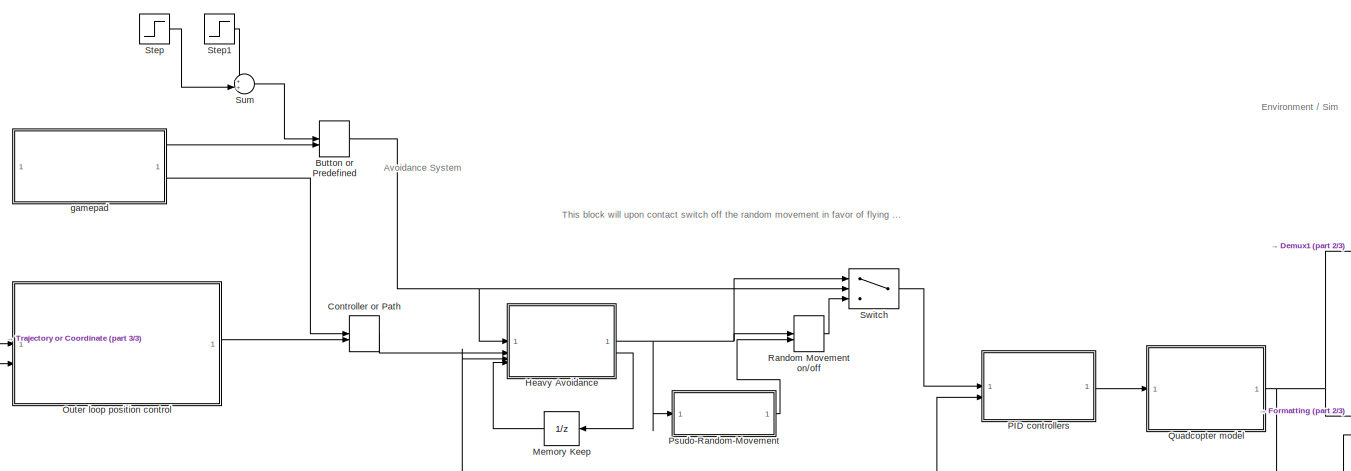
[diagram: root canvas - part 1/3, center side, full height]
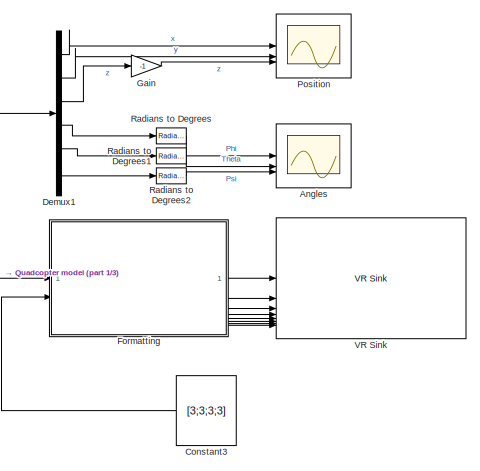
[diagram: root canvas - part 2/3, right side, full height]
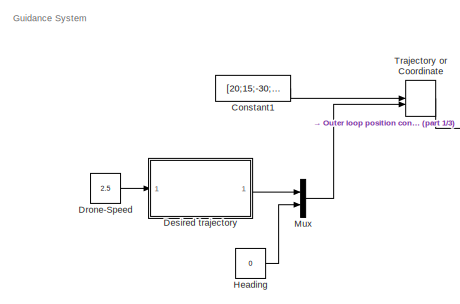
[diagram: root canvas - part 3/3, middle left region]
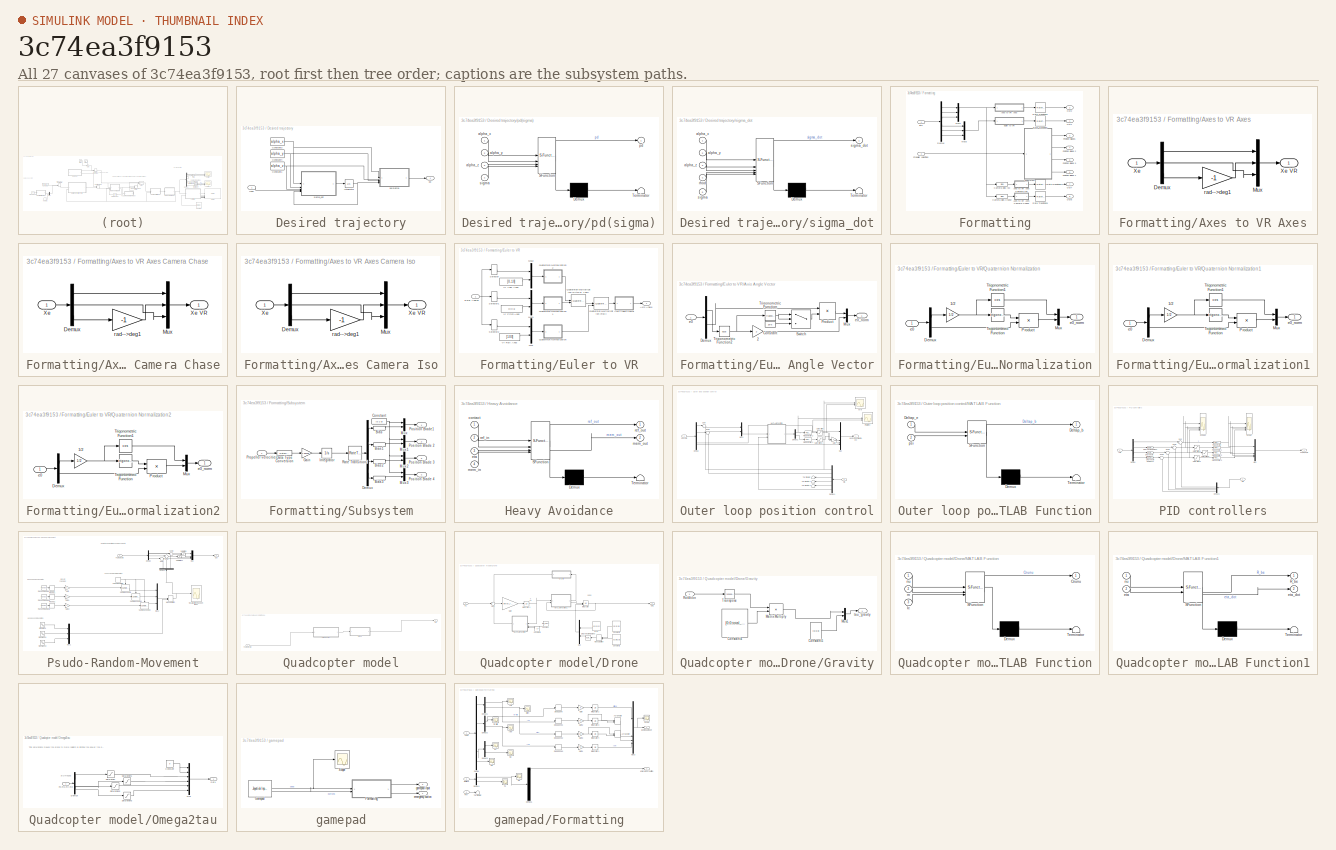
[diagram: thumbnail index - all 27 canvases of the model, root first then tree order]
MODEL slx_3c74ea3f9153
KIND model
CONFIG AbsTol = auto
CONFIG EnableMultiTasking = on
CONFIG FixedStep = 0.005
CONFIG MaxStep = auto
CONFIG MinStep = auto
CONFIG RelTol = 1e-3
CONFIG SampleTimeConstraint = Unconstrained
CONFIG SolverName = ode3
CONFIG StartTime = 0
CONFIG StopTime = inf
BLOCK [Scope] Angles
  Floating = off
  NameLocation = top
  NumInputPorts = 3
  ScopeSpecificationString = Simulink.scopes.TimeScopeBlockCfg('CurrentConfiguration', extmgr.ConfigurationSet(extmgr.Configuration('Core','General UI',true),extmgr.Configuration('Core','Source UI',true),extmgr.Configuration('Sources','WiredSimulink',true,'DataLoggingVariableName','ScopeData1'),extmgr.Configuration('Visuals','Time Domain',true,'SerializedDisplays',{struct('MinYLimReal','-14501649841668824491884544.00000','Max...<+1771ch>
BLOCK [ManualSwitch] Button or Predefined
  CurrentSetting = 0
BLOCK [Constant] Constant1
  Value = [20;15;-30;0]
BLOCK [Constant] Constant3
  Value = [3;3;3;3]
  VectorParams1D = off
BLOCK [ManualSwitch] Controller or Path
BLOCK [Demux] Demux1
  Outputs = 6
BLOCK [SubSystem] Desired trajectory
BLOCK [Constant] Desired trajectory/Constant1
  Value = alpha_z
  VectorParams1D = off
BLOCK [Constant] Desired trajectory/Constant3
  Value = alpha_x
  VectorParams1D = off
BLOCK [Constant] Desired trajectory/Constant4
  Value = alpha_y
  VectorParams1D = off
BLOCK [Integrator] Desired trajectory/Integrator
BLOCK [Outport] Desired trajectory/pd
BLOCK [SubSystem] Desired trajectory/pd(sigma)
  ErrorFcn = Stateflow.Translate.translate
  PermitHierarchicalResolution = ExplicitOnly
  SFBlockType = MATLAB Function
  TreatAsAtomicUnit = on
BLOCK [Demux] Desired trajectory/pd(sigma)/ Demux 
  Outputs = 1
BLOCK [S-Function] Desired trajectory/pd(sigma)/ SFunction 
  EnableBusSupport = on
  FunctionName = sf_sfun
  PortCounts = [4 2]
  SFcnIsStateOwnerBlock = off
  SFunctionDeploymentMode = off
  Tag = Stateflow S-Function 3
BLOCK [Terminator] Desired trajectory/pd(sigma)/ Terminator 
BLOCK [Inport] Desired trajectory/pd(sigma)/alpha_x
BLOCK [Inport] Desired trajectory/pd(sigma)/alpha_y
  Port = 2
BLOCK [Inport] Desired trajectory/pd(sigma)/alpha_z
  Port = 3
BLOCK [Outport] Desired trajectory/pd(sigma)/pd
BLOCK [Inport] Desired trajectory/pd(sigma)/sigma
  Port = 4
BLOCK [Inport] Desired trajectory/rhod
BLOCK [SubSystem] Desired trajectory/sigma_dot
  ErrorFcn = Stateflow.Translate.translate
  PermitHierarchicalResolution = ExplicitOnly
  SFBlockType = MATLAB Function
  TreatAsAtomicUnit = on
BLOCK [Demux] Desired trajectory/sigma_dot/ Demux 
  Outputs = 1
BLOCK [S-Function] Desired trajectory/sigma_dot/ SFunction 
  EnableBusSupport = on
  FunctionName = sf_sfun
  PortCounts = [5 2]
  SFcnIsStateOwnerBlock = off
  SFunctionDeploymentMode = off
  Tag = Stateflow S-Function 5
BLOCK [Terminator] Desired trajectory/sigma_dot/ Terminator 
BLOCK [Inport] Desired trajectory/sigma_dot/alpha_x
BLOCK [Inport] Desired trajectory/sigma_dot/alpha_y
  Port = 2
BLOCK [Inport] Desired trajectory/sigma_dot/alpha_z
  Port = 3
BLOCK [Inport] Desired trajectory/sigma_dot/rhod
  Port = 4
BLOCK [Inport] Desired trajectory/sigma_dot/sigma
  Port = 5
BLOCK [Outport] Desired trajectory/sigma_dot/sigma_dot
BLOCK [Constant] Drone-Speed
  Value = 2.5
BLOCK [SubSystem] Formatting
BLOCK [SubSystem] Formatting/Axes to VR Axes
BLOCK [SubSystem] Formatting/Axes to VR Axes Camera Chase
BLOCK [Demux] Formatting/Axes to VR Axes Camera Chase/Demux
  DisplayOption = none
  Outputs = 3
BLOCK [Mux] Formatting/Axes to VR Axes Camera Chase/Mux
  DisplayOption = bar
  Inputs = 3
BLOCK [Inport] Formatting/Axes to VR Axes Camera Chase/Xe
BLOCK [Outport] Formatting/Axes to VR Axes Camera Chase/Xe VR
  VectorParamsAs1DForOutWhenUnconnected = off
BLOCK [Gain] Formatting/Axes to VR Axes Camera Chase/rad-->deg1
  Gain = -1
  NameLocation = top
  OutDataTypeStr = Inherit: Same as input
  ParamDataTypeStr = Inherit: Same as input
  SaturateOnIntegerOverflow = on
BLOCK [SubSystem] Formatting/Axes to VR Axes Camera Iso
BLOCK [Demux] Formatting/Axes to VR Axes Camera Iso/Demux
  DisplayOption = none
  Outputs = 3
BLOCK [Mux] Formatting/Axes to VR Axes Camera Iso/Mux
  DisplayOption = bar
  Inputs = 3
BLOCK [Inport] Formatting/Axes to VR Axes Camera Iso/Xe
BLOCK [Outport] Formatting/Axes to VR Axes Camera Iso/Xe VR
  VectorParamsAs1DForOutWhenUnconnected = off
BLOCK [Gain] Formatting/Axes to VR Axes Camera Iso/rad-->deg1
  Gain = -1
  NameLocation = top
  OutDataTypeStr = Inherit: Same as input
  ParamDataTypeStr = Inherit: Same as input
  SaturateOnIntegerOverflow = on
BLOCK [Demux] Formatting/Axes to VR Axes/Demux
  DisplayOption = none
  Outputs = 3
BLOCK [Mux] Formatting/Axes to VR Axes/Mux
  DisplayOption = bar
  Inputs = 3
BLOCK [Inport] Formatting/Axes to VR Axes/Xe
BLOCK [Outport] Formatting/Axes to VR Axes/Xe VR
  VectorParamsAs1DForOutWhenUnconnected = off
BLOCK [Gain] Formatting/Axes to VR Axes/rad-->deg1
  Gain = -1
  NameLocation = top
  OutDataTypeStr = Inherit: Same as input
  ParamDataTypeStr = Inherit: Same as input
  SaturateOnIntegerOverflow = on
BLOCK [Bias] Formatting/Camera bias Chase
  Bias = [-4 0 -.9558]'
  SaturateOnIntegerOverflow = off
BLOCK [Bias] Formatting/Camera bias Iso
  Bias = [0.9009 .99 -.6247]'
  SaturateOnIntegerOverflow = off
BLOCK [Demux] Formatting/Demux
  Outputs = 6
BLOCK [Inport] Formatting/Eta
BLOCK [SubSystem] Formatting/Euler to VR
BLOCK [Outport] Formatting/Euler to VR/Axis Angle
  VectorParamsAs1DForOutWhenUnconnected = off
BLOCK [SubSystem] Formatting/Euler to VR/Axis Angle Vector
BLOCK [Gain] Formatting/Euler to VR/Axis Angle Vector/2
  Gain = 2
  OutDataTypeStr = Inherit: Same as input
  ParamDataTypeStr = Inherit: Same as input
  SaturateOnIntegerOverflow = on
BLOCK [Constant] Formatting/Euler to VR/Axis Angle Vector/Constant
  Value = 1e-6
BLOCK [Demux] Formatting/Euler to VR/Axis Angle Vector/Demux
  DisplayOption = none
  Outputs = [1 3 ]
BLOCK [Mux] Formatting/Euler to VR/Axis Angle Vector/Mux
  DisplayOption = bar
  Inputs = 2
BLOCK [Product] Formatting/Euler to VR/Axis Angle Vector/Product
  InputSameDT = on
  Inputs = */
  OutDataTypeStr = Inherit: Same as first input
  SaturateOnIntegerOverflow = on
BLOCK [Switch] Formatting/Euler to VR/Axis Angle Vector/Switch
  Criteria = u2 ~= 0
  InputSameDT = off
  SaturateOnIntegerOverflow = off
BLOCK [Trigonometry] Formatting/Euler to VR/Axis Angle Vector/Trigonometric Function
BLOCK [Trigonometry] Formatting/Euler to VR/Axis Angle Vector/Trigonometric Function2
  Operator = acos
BLOCK [Inport] Formatting/Euler to VR/Axis Angle Vector/e0
BLOCK [Outport] Formatting/Euler to VR/Axis Angle Vector/e0_norm
  VectorParamsAs1DForOutWhenUnconnected = off
BLOCK [Inport] Formatting/Euler to VR/Euler Angles
BLOCK [Mux] Formatting/Euler to VR/Mux
  DisplayOption = bar
  Inputs = 2
BLOCK [Mux] Formatting/Euler to VR/Mux1
  DisplayOption = bar
  Inputs = 2
BLOCK [Mux] Formatting/Euler to VR/Mux2
  DisplayOption = bar
  Inputs = 2
BLOCK [Reference] Formatting/Euler to VR/Quaternion Multiplication (Pitch & Yaw)  REF=aerolibutil/Quaternion
Multiplication
  SourceBlock = aerolibutil/Quaternion\nMultiplication
  SourceType = Quaternion Multiplication
BLOCK [Reference] Formatting/Euler to VR/Quaternion Multiplication (Roll)  REF=aerolibutil/Quaternion
Multiplication
  SourceBlock = aerolibutil/Quaternion\nMultiplication
  SourceType = Quaternion Multiplication
BLOCK [SubSystem] Formatting/Euler to VR/Quaternion Normalization
BLOCK [Gain] Formatting/Euler to VR/Quaternion Normalization/1//2
  Gain = 1/2
  OutDataTypeStr = Inherit: Same as input
  ParamDataTypeStr = Inherit: Same as input
  SaturateOnIntegerOverflow = on
BLOCK [Demux] Formatting/Euler to VR/Quaternion Normalization/Demux
  DisplayOption = none
  Outputs = [1 3]
BLOCK [Mux] Formatting/Euler to VR/Quaternion Normalization/Mux
  DisplayOption = bar
  Inputs = 2
BLOCK [Product] Formatting/Euler to VR/Quaternion Normalization/Product
  InputSameDT = on
  OutDataTypeStr = Inherit: Same as first input
  SaturateOnIntegerOverflow = on
BLOCK [Trigonometry] Formatting/Euler to VR/Quaternion Normalization/Trigonometric Function
BLOCK [Trigonometry] Formatting/Euler to VR/Quaternion Normalization/Trigonometric Function1
  Operator = cos
BLOCK [Inport] Formatting/Euler to VR/Quaternion Normalization/e0
BLOCK [Outport] Formatting/Euler to VR/Quaternion Normalization/e0_norm
  VectorParamsAs1DForOutWhenUnconnected = off
BLOCK [SubSystem] Formatting/Euler to VR/Quaternion Normalization1
BLOCK [Gain] Formatting/Euler to VR/Quaternion Normalization1/1//2
  Gain = 1/2
  OutDataTypeStr = Inherit: Same as input
  ParamDataTypeStr = Inherit: Same as input
  SaturateOnIntegerOverflow = on
BLOCK [Demux] Formatting/Euler to VR/Quaternion Normalization1/Demux
  DisplayOption = none
  Outputs = [1 3]
BLOCK [Mux] Formatting/Euler to VR/Quaternion Normalization1/Mux
  DisplayOption = bar
  Inputs = 2
BLOCK [Product] Formatting/Euler to VR/Quaternion Normalization1/Product
  InputSameDT = on
  OutDataTypeStr = Inherit: Same as first input
  SaturateOnIntegerOverflow = on
BLOCK [Trigonometry] Formatting/Euler to VR/Quaternion Normalization1/Trigonometric Function
BLOCK [Trigonometry] Formatting/Euler to VR/Quaternion Normalization1/Trigonometric Function1
  Operator = cos
BLOCK [Inport] Formatting/Euler to VR/Quaternion Normalization1/e0
BLOCK [Outport] Formatting/Euler to VR/Quaternion Normalization1/e0_norm
  VectorParamsAs1DForOutWhenUnconnected = off
BLOCK [SubSystem] Formatting/Euler to VR/Quaternion Normalization2
BLOCK [Gain] Formatting/Euler to VR/Quaternion Normalization2/1//2
  Gain = 1/2
  OutDataTypeStr = Inherit: Same as input
  ParamDataTypeStr = Inherit: Same as input
  SaturateOnIntegerOverflow = on
BLOCK [Demux] Formatting/Euler to VR/Quaternion Normalization2/Demux
  DisplayOption = none
  Outputs = [1 3]
BLOCK [Mux] Formatting/Euler to VR/Quaternion Normalization2/Mux
  DisplayOption = bar
  Inputs = 2
BLOCK [Product] Formatting/Euler to VR/Quaternion Normalization2/Product
  InputSameDT = on
  OutDataTypeStr = Inherit: Same as first input
  SaturateOnIntegerOverflow = on
BLOCK [Trigonometry] Formatting/Euler to VR/Quaternion Normalization2/Trigonometric Function
BLOCK [Trigonometry] Formatting/Euler to VR/Quaternion Normalization2/Trigonometric Function1
  Operator = cos
BLOCK [Inport] Formatting/Euler to VR/Quaternion Normalization2/e0
BLOCK [Outport] Formatting/Euler to VR/Quaternion Normalization2/e0_norm
  VectorParamsAs1DForOutWhenUnconnected = off
BLOCK [Selector] Formatting/Euler to VR/Selector
  IndexOptions = Index vector (dialog)
  Indices = [3]
  InputPortWidth = 3
  OutputSizes = 1
BLOCK [Selector] Formatting/Euler to VR/Selector1
  IndexOptions = Index vector (dialog)
  Indices = [2]
  InputPortWidth = 3
  OutputSizes = 1
BLOCK [Selector] Formatting/Euler to VR/Selector2
  IndexOptions = Index vector (dialog)
  Indices = [1]
  InputPortWidth = 3
  OutputSizes = 1
BLOCK [Constant] Formatting/Euler to VR/Vr Pitch Axes
  NameLocation = top
  Value = [0 0 1]
BLOCK [Constant] Formatting/Euler to VR/Vr Roll Axes
  NameLocation = top
  Value = [1 0 0]
BLOCK [Constant] Formatting/Euler to VR/Vr Yaw Axes
  Value = [0 -1 0]
BLOCK [Mux] Formatting/Mux1
  DisplayOption = bar
  Inputs = 3
BLOCK [Mux] Formatting/Mux3
  DisplayOption = bar
  Inputs = 3
BLOCK [Outport] Formatting/Out1
BLOCK [Outport] Formatting/Out2
  Port = 2
BLOCK [Outport] Formatting/Out7
  Port = 7
BLOCK [Outport] Formatting/Out8
  Port = 8
BLOCK [Outport] Formatting/Position Blade 2
  Port = 4
BLOCK [Outport] Formatting/Position Blade 3
  Port = 5
BLOCK [Outport] Formatting/Position Blade 4
  Port = 6
BLOCK [Outport] Formatting/Position Blade1
  Port = 3
BLOCK [Inport] Formatting/Propeller velocities
  Port = 2
BLOCK [RateTransition] Formatting/Rate Transition
BLOCK [RateTransition] Formatting/Rate Transition1
BLOCK [RateTransition] Formatting/Rate Transition2
BLOCK [RateTransition] Formatting/Rate Transition3
BLOCK [SubSystem] Formatting/Subsystem
BLOCK [Bias] Formatting/Subsystem/Bias
  Bias = .1
  SaturateOnIntegerOverflow = off
BLOCK [Bias] Formatting/Subsystem/Bias1
  Bias = -.3
  SaturateOnIntegerOverflow = off
BLOCK [Bias] Formatting/Subsystem/Bias2
  Bias = .5
  SaturateOnIntegerOverflow = off
BLOCK [Bias] Formatting/Subsystem/Bias3
  Bias = .7
  SaturateOnIntegerOverflow = off
BLOCK [Constant] Formatting/Subsystem/Constant
  Value = [0 1 0]
BLOCK [DataTypeConversion] Formatting/Subsystem/Data Type Conversion
  OutDataTypeStr = double
  RndMeth = Floor
  SaturateOnIntegerOverflow = off
BLOCK [Demux] Formatting/Subsystem/Demux
BLOCK [Gain] Formatting/Subsystem/Gain
  Gain = 1.38408
BLOCK [Integrator] Formatting/Subsystem/Integrator
  InitialCondition = [.1 ; .2 ;-.3 ;-.4]
  WrapState = on
  WrappedStateLowerValue = -2*pi
  WrappedStateUpperValue = 2*pi
BLOCK [Mux] Formatting/Subsystem/Mux
  DisplayOption = bar
  Inputs = 2
BLOCK [Mux] Formatting/Subsystem/Mux1
  DisplayOption = bar
  Inputs = 2
BLOCK [Mux] Formatting/Subsystem/Mux2
  DisplayOption = bar
  Inputs = 2
BLOCK [Mux] Formatting/Subsystem/Mux3
  DisplayOption = bar
  Inputs = 2
BLOCK [Outport] Formatting/Subsystem/Position Blade 2
  Port = 2
  VectorParamsAs1DForOutWhenUnconnected = off
BLOCK [Outport] Formatting/Subsystem/Position Blade 3
  Port = 3
  VectorParamsAs1DForOutWhenUnconnected = off
BLOCK [Outport] Formatting/Subsystem/Position Blade 4
  Port = 4
  VectorParamsAs1DForOutWhenUnconnected = off
BLOCK [Outport] Formatting/Subsystem/Position Blade1
  VectorParamsAs1DForOutWhenUnconnected = off
BLOCK [Inport] Formatting/Subsystem/Propeller velocities
BLOCK [RateTransition] Formatting/Subsystem/Rate Transition2
BLOCK [Gain] Gain
  Gain = -1
BLOCK [Constant] Heading
  Value = 0
BLOCK [SubSystem] Heavy Avoidance
  ErrorFcn = Stateflow.Translate.translate
  PermitHierarchicalResolution = ExplicitOnly
  SFBlockType = MATLAB Function
  TreatAsAtomicUnit = on
BLOCK [Demux] Heavy Avoidance/ Demux 
  Outputs = 1
BLOCK [S-Function] Heavy Avoidance/ SFunction 
  EnableBusSupport = on
  FunctionName = sf_sfun
  PortCounts = [4 3]
  SFcnIsStateOwnerBlock = off
  SFunctionDeploymentMode = off
  Tag = Stateflow S-Function 6
BLOCK [Terminator] Heavy Avoidance/ Terminator 
BLOCK [Inport] Heavy Avoidance/contact
BLOCK [Inport] Heavy Avoidance/eta
  Port = 3
BLOCK [Inport] Heavy Avoidance/mem_in
  Port = 4
BLOCK [Outport] Heavy Avoidance/mem_out
  Port = 2
BLOCK [Inport] Heavy Avoidance/ref_in
  Port = 2
BLOCK [Outport] Heavy Avoidance/ref_out
BLOCK [UnitDelay] Memory Keep
  HasFrameUpgradeWarning = on
  SampleTime = -1
BLOCK [Mux] Mux
  DisplayOption = bar
  Inputs = 2
BLOCK [SubSystem] Outer loop position control
BLOCK [Demux] Outer loop position control/Demux
BLOCK [Demux] Outer loop position control/Demux1
  Outputs = 6
BLOCK [Demux] Outer loop position control/Demux2
  Outputs = 2
BLOCK [Gain] Outer loop position control/Gain
  Gain = -1
BLOCK [SubSystem] Outer loop position control/MATLAB Function
  ErrorFcn = Stateflow.Translate.translate
  PermitHierarchicalResolution = ExplicitOnly
  SFBlockType = MATLAB Function
  TreatAsAtomicUnit = on
BLOCK [Demux] Outer loop position control/MATLAB Function/ Demux 
  Outputs = 1
BLOCK [S-Function] Outer loop position control/MATLAB Function/ SFunction 
  EnableBusSupport = on
  FunctionName = sf_sfun
  PortCounts = [2 2]
  SFcnIsStateOwnerBlock = off
  SFunctionDeploymentMode = off
  Tag = Stateflow S-Function 1
BLOCK [Terminator] Outer loop position control/MATLAB Function/ Terminator 
BLOCK [Outport] Outer loop position control/MATLAB Function/Deltap_b
BLOCK [Inport] Outer loop position control/MATLAB Function/Deltap_e
BLOCK [Inport] Outer loop position control/MATLAB Function/psi
  Port = 2
BLOCK [Mux] Outer loop position control/Mux
  DisplayOption = bar
BLOCK [Mux] Outer loop position control/Mux1
  DisplayOption = bar
  Inputs = 2
BLOCK [Reference] Outer loop position control/PID Controller1  REF=slpidlib/PID Controller
  LibrarySourceBlock = simulink/Continuous/PID Controller
  SourceBlock = slpidlib/PID Controller
  SourceType = PID 1dof
BLOCK [Reference] Outer loop position control/PID Controller2  REF=slpidlib/PID Controller
  LibrarySourceBlock = simulink/Continuous/PID Controller
  SourceBlock = slpidlib/PID Controller
  SourceType = PID 1dof
BLOCK [Scope] Outer loop position control/Pid Effect
  Floating = off
  NameLocation = top
  NumInputPorts = 2
  ScopeSpecificationString = Simulink.scopes.TimeScopeBlockCfg('CurrentConfiguration', extmgr.ConfigurationSet(extmgr.Configuration('Core','General UI',true),extmgr.Configuration('Core','Source UI',true),extmgr.Configuration('Sources','WiredSimulink',true,'DataLoggingVariableName','ScopeData1'),extmgr.Configuration('Visuals','Time Domain',true,'SerializedDisplays',{struct('MinYLimReal','-0.60275','MaxYLimReal','5.00675','YLab...<+1703ch>
BLOCK [Inport] Outer loop position control/Pos. refs
BLOCK [Saturate] Outer loop position control/Saturation
  LowerLimit = -30
  UpperLimit = 30
BLOCK [Saturate] Outer loop position control/Saturation1
  LowerLimit = -30
  UpperLimit = 30
BLOCK [Sum] Outer loop position control/Sum
  Inputs = |+-
BLOCK [Sum] Outer loop position control/Sum1
  Inputs = |+-
BLOCK [Terminator] Outer loop position control/Terminator
BLOCK [Terminator] Outer loop position control/Terminator1
BLOCK [Terminator] Outer loop position control/Terminator2
BLOCK [Outport] Outer loop position control/desired z,phi,theta,psi
BLOCK [Inport] Outer loop position control/eta
  Port = 2
BLOCK [Scope] Outer loop position control/x//y(t)
  Floating = off
  NameLocation = top
  NumInputPorts = 2
  ScopeSpecificationString = Simulink.scopes.TimeScopeBlockCfg('CurrentConfiguration', extmgr.ConfigurationSet(extmgr.Configuration('Core','General UI',true),extmgr.Configuration('Core','Source UI',true),extmgr.Configuration('Sources','WiredSimulink',true,'DataLoggingVariableName','ScopeData1'),extmgr.Configuration('Visuals','Time Domain',true,'SerializedDisplays',{struct('MinYLimReal','-1.19985','MaxYLimReal','10.38067','YLa...<+1702ch>
BLOCK [SubSystem] PID controllers
BLOCK [Reference] PID controllers/Degrees to Radians  REF=simulink_extras/Transformations/Degrees to
Radians
  SourceBlock = simulink_extras/Transformations/Degrees to\nRadians
  SourceType = DegreesToRadians
BLOCK [Reference] PID controllers/Degrees to Radians1  REF=simulink_extras/Transformations/Degrees to
Radians
  SourceBlock = simulink_extras/Transformations/Degrees to\nRadians
  SourceType = DegreesToRadians
BLOCK [Reference] PID controllers/Degrees to Radians2  REF=simulink_extras/Transformations/Degrees to
Radians
  SourceBlock = simulink_extras/Transformations/Degrees to\nRadians
  SourceType = DegreesToRadians
BLOCK [Demux] PID controllers/Demux
BLOCK [Demux] PID controllers/Demux1
  Outputs = 6
BLOCK [Outport] PID controllers/Fz,mx,my,mz
BLOCK [Mux] PID controllers/Mux
  DisplayOption = bar
BLOCK [Reference] PID controllers/PID Controller  REF=slpidlib/PID Controller
  LibrarySourceBlock = simulink/Continuous/PID Controller
  SourceBlock = slpidlib/PID Controller
  SourceType = PID 1dof
BLOCK [Reference] PID controllers/PID Controller1  REF=slpidlib/PID Controller
  LibrarySourceBlock = simulink/Continuous/PID Controller
  SourceBlock = slpidlib/PID Controller
  SourceType = PID 1dof
BLOCK [Reference] PID controllers/PID Controller2  REF=slpidlib/PID Controller
  LibrarySourceBlock = simulink/Continuous/PID Controller
  SourceBlock = slpidlib/PID Controller
  SourceType = PID 1dof
BLOCK [Reference] PID controllers/PID Controller3  REF=slpidlib/PID Controller
  LibrarySourceBlock = simulink/Continuous/PID Controller
  SourceBlock = slpidlib/PID Controller
  SourceType = PID 1dof
BLOCK [Saturate] PID controllers/Saturation1
  LowerLimit = -0.7
  UpperLimit = 0.7
BLOCK [Saturate] PID controllers/Saturation2
  LowerLimit = -0.7
  UpperLimit = 0.7
BLOCK [Saturate] PID controllers/Saturation3
  LowerLimit = -0.7
  UpperLimit = 0.7
BLOCK [Scope] PID controllers/Scope
  Floating = off
  NumInputPorts = 4
  ScopeSpecificationString = Simulink.scopes.TimeScopeBlockCfg('CurrentConfiguration', extmgr.ConfigurationSet(extmgr.Configuration('Core','General UI',true),extmgr.Configuration('Core','Source UI',true),extmgr.Configuration('Sources','WiredSimulink',true,'DataLoggingVariableName','ScopeData1'),extmgr.Configuration('Visuals','Time Domain',true,'SerializedDisplays',{struct('MinYLimReal','-175.96367','MaxYLimReal','172.59063','...<+1630ch>
BLOCK [Scope] PID controllers/Scope1
  Floating = off
  NumInputPorts = 4
  ScopeSpecificationString = Simulink.scopes.TimeScopeBlockCfg('CurrentConfiguration', extmgr.ConfigurationSet(extmgr.Configuration('Core','General UI',true),extmgr.Configuration('Core','Source UI',true),extmgr.Configuration('Sources','WiredSimulink',true,'DataLoggingVariableName','ScopeData2'),extmgr.Configuration('Visuals','Time Domain',true,'SerializedDisplays',{struct('MinYLimReal','-49376513653546323928474393693302239254...<+2382ch>
BLOCK [Sum] PID controllers/Sum
  Inputs = |+-
BLOCK [Sum] PID controllers/Sum1
  Inputs = |+-
BLOCK [Sum] PID controllers/Sum2
  Inputs = |+-
BLOCK [Sum] PID controllers/Sum3
  Inputs = |+-
BLOCK [Inport] PID controllers/eta
  Port = 2
BLOCK [Inport] PID controllers/refs
BLOCK [Scope] Position
  Floating = off
  NameLocation = top
  NumInputPorts = 3
  ScopeSpecificationString = Simulink.scopes.TimeScopeBlockCfg('CurrentConfiguration', extmgr.ConfigurationSet(extmgr.Configuration('Core','General UI',true),extmgr.Configuration('Core','Source UI',true),extmgr.Configuration('Sources','WiredSimulink',true),extmgr.Configuration('Visuals','Time Domain',true,'SerializedDisplays',{struct('MinYLimReal','-1613.25676','MaxYLimReal','2915.12794','YLabelReal','','MinYLimMag','  0.0000...<+1572ch>
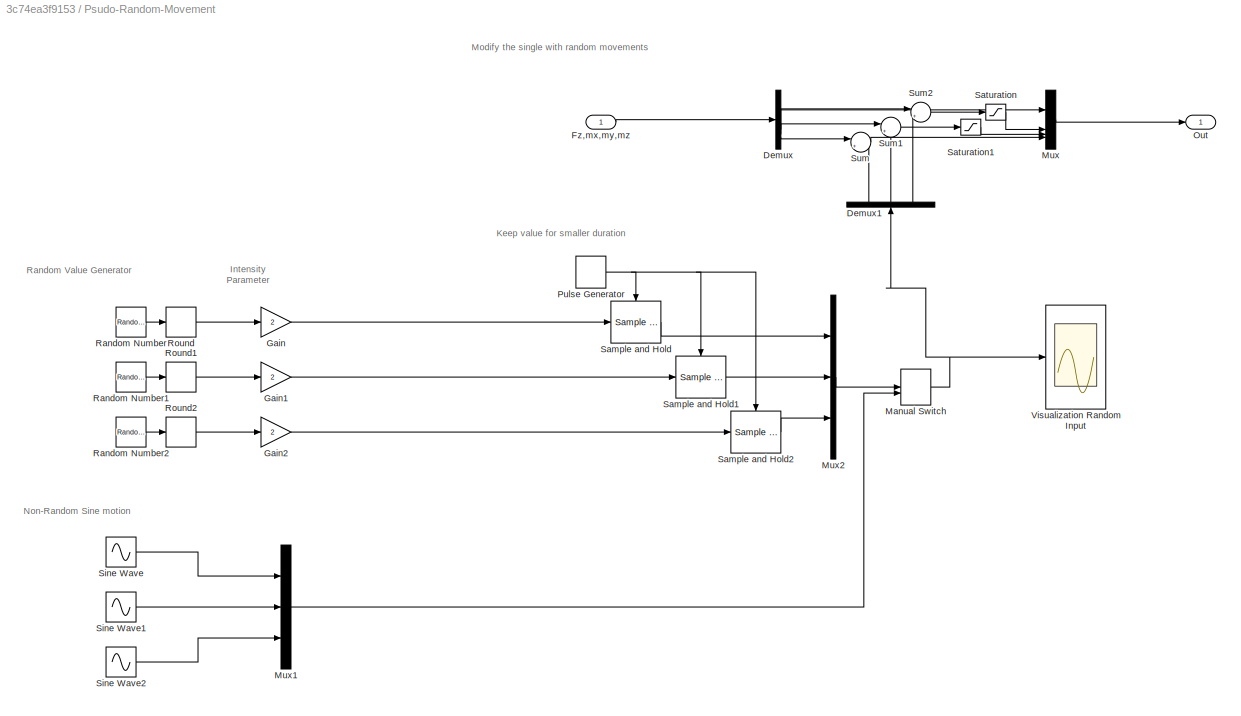
BLOCK [SubSystem] Psudo-Random-Movement
BLOCK [Demux] Psudo-Random-Movement/Demux
BLOCK [Demux] Psudo-Random-Movement/Demux1
  NameLocation = right
  Outputs = 3
BLOCK [Inport] Psudo-Random-Movement/Fz,mx,my,mz
BLOCK [Gain] Psudo-Random-Movement/Gain
  Gain = 2
BLOCK [Gain] Psudo-Random-Movement/Gain1
  Gain = 2
BLOCK [Gain] Psudo-Random-Movement/Gain2
  Gain = 2
BLOCK [ManualSwitch] Psudo-Random-Movement/Manual Switch
BLOCK [Mux] Psudo-Random-Movement/Mux
  DisplayOption = bar
BLOCK [Mux] Psudo-Random-Movement/Mux1
  DisplayOption = bar
  Inputs = 3
BLOCK [Mux] Psudo-Random-Movement/Mux2
  DisplayOption = bar
  Inputs = 3
BLOCK [Outport] Psudo-Random-Movement/Out
BLOCK [DiscretePulseGenerator] Psudo-Random-Movement/Pulse Generator
  Period = 1
  PulseType = Time based
  PulseWidth = 90
BLOCK [RandomNumber] Psudo-Random-Movement/Random Number
  SampleTime = 0
  Variance = 10
BLOCK [RandomNumber] Psudo-Random-Movement/Random Number1
  SampleTime = 0
  Seed = 2
  Variance = 10
BLOCK [RandomNumber] Psudo-Random-Movement/Random Number2
  SampleTime = 0
  Seed = 234
  Variance = 10
BLOCK [Rounding] Psudo-Random-Movement/Round
  Operator = ceil
BLOCK [Rounding] Psudo-Random-Movement/Round1
  Operator = ceil
BLOCK [Rounding] Psudo-Random-Movement/Round2
  Operator = ceil
BLOCK [Reference] Psudo-Random-Movement/Sample and Hold  REF=dspsigops/Sample
and Hold
  LibrarySourceBlock = dsphdlsupportsigops/Sample\nand Hold
  SourceBlock = dspsigops/Sample\nand Hold
  SourceType = Sample and Hold
BLOCK [Reference] Psudo-Random-Movement/Sample and Hold1  REF=dspsigops/Sample
and Hold
  LibrarySourceBlock = dsphdlsupportsigops/Sample\nand Hold
  SourceBlock = dspsigops/Sample\nand Hold
  SourceType = Sample and Hold
BLOCK [Reference] Psudo-Random-Movement/Sample and Hold2  REF=dspsigops/Sample
and Hold
  LibrarySourceBlock = dsphdlsupportsigops/Sample\nand Hold
  SourceBlock = dspsigops/Sample\nand Hold
  SourceType = Sample and Hold
BLOCK [Saturate] Psudo-Random-Movement/Saturation
  LowerLimit = -45
  UpperLimit = 45
BLOCK [Saturate] Psudo-Random-Movement/Saturation1
  LowerLimit = -45
  UpperLimit = 45
BLOCK [Sin] Psudo-Random-Movement/Sine Wave
  Amplitude = 12
  SampleTime = 0
BLOCK [Sin] Psudo-Random-Movement/Sine Wave1
  Amplitude = 5
  Frequency = 2
  SampleTime = 0
BLOCK [Sin] Psudo-Random-Movement/Sine Wave2
  Amplitude = 3
  SampleTime = 0
BLOCK [Sum] Psudo-Random-Movement/Sum
  Inputs = |++
BLOCK [Sum] Psudo-Random-Movement/Sum1
  Inputs = |++
BLOCK [Sum] Psudo-Random-Movement/Sum2
  Inputs = |++
BLOCK [Scope] Psudo-Random-Movement/Visualization Random Input
  Floating = off
  NumInputPorts = 1
  ScopeSpecificationString = Simulink.scopes.TimeScopeBlockCfg('CurrentConfiguration', extmgr.ConfigurationSet(extmgr.Configuration('Core','General UI',true),extmgr.Configuration('Core','Source UI',true),extmgr.Configuration('Sources','WiredSimulink',true,'DataLoggingVariableName','ScopeData1'),extmgr.Configuration('Visuals','Time Domain',true,'SerializedDisplays',{struct('MinYLimReal','-5.5825','MaxYLimReal','13.8425','YLabe...<+1508ch>
BLOCK [SubSystem] Quadcopter model
BLOCK [SubSystem] Quadcopter model/Drone
BLOCK [Constant] Quadcopter model/Drone/Constant
  Value = total_mass
BLOCK [Constant] Quadcopter model/Drone/Constant1
  Value = I_c
  VectorParams1D = off
BLOCK [Constant] Quadcopter model/Drone/Constant2
  Value = [0;90;0]
  VectorParams1D = off
BLOCK [Constant] Quadcopter model/Drone/Constant3
  Value = [0;0;0]
  VectorParams1D = off
BLOCK [Reference] Quadcopter model/Drone/Degrees to Radians  REF=simulink_extras/Transformations/Degrees to
Radians
  NameLocation = top
  SourceBlock = simulink_extras/Transformations/Degrees to\nRadians
  SourceType = DegreesToRadians
BLOCK [Gain] Quadcopter model/Drone/Gain
  Gain = inv(M_rb)
  Multiplication = Matrix(K*u) (u vector)
BLOCK [SubSystem] Quadcopter model/Drone/Gravity
BLOCK [Constant] Quadcopter model/Drone/Gravity/Constant4
  Value = [0;0;total_mass*g]
  VectorParams1D = off
BLOCK [Constant] Quadcopter model/Drone/Gravity/Constant5
  Value = [0;0;0]
  VectorParams1D = off
BLOCK [Product] Quadcopter model/Drone/Gravity/Matrix Multiply
  Multiplication = Matrix(*)
BLOCK [Mux] Quadcopter model/Drone/Gravity/Mux1
  DisplayOption = bar
  Inputs = 2
BLOCK [Inport] Quadcopter model/Drone/Gravity/Rotation
BLOCK [Math] Quadcopter model/Drone/Gravity/Transpose
  Operator = transpose
BLOCK [Outport] Quadcopter model/Drone/Gravity/tau_gravity
BLOCK [Inport] Quadcopter model/Drone/In1
BLOCK [Integrator] Quadcopter model/Drone/Integrator
  InitialCondition = [0;0;-10;0;pi/2;0]
  InitialConditionSource = external
BLOCK [Integrator] Quadcopter model/Drone/Integrator1
  InitialCondition = [0;0;0;0;0;0]
BLOCK [SubSystem] Quadcopter model/Drone/MATLAB Function
  ErrorFcn = Stateflow.Translate.translate
  PermitHierarchicalResolution = ExplicitOnly
  SFBlockType = MATLAB Function
  TreatAsAtomicUnit = on
BLOCK [Demux] Quadcopter model/Drone/MATLAB Function/ Demux 
  Outputs = 1
BLOCK [S-Function] Quadcopter model/Drone/MATLAB Function/ SFunction 
  EnableBusSupport = on
  FunctionName = sf_sfun
  PortCounts = [3 2]
  SFcnIsStateOwnerBlock = off
  SFunctionDeploymentMode = off
  Tag = Stateflow S-Function 2
BLOCK [Terminator] Quadcopter model/Drone/MATLAB Function/ Terminator 
BLOCK [Outport] Quadcopter model/Drone/MATLAB Function/Cnunu
BLOCK [Inport] Quadcopter model/Drone/MATLAB Function/Ic
  Port = 3
BLOCK [Inport] Quadcopter model/Drone/MATLAB Function/m
  Port = 2
BLOCK [Inport] Quadcopter model/Drone/MATLAB Function/nu
BLOCK [SubSystem] Quadcopter model/Drone/MATLAB Function1
  ErrorFcn = Stateflow.Translate.translate
  PermitHierarchicalResolution = ExplicitOnly
  SFBlockType = MATLAB Function
  TreatAsAtomicUnit = on
BLOCK [Demux] Quadcopter model/Drone/MATLAB Function1/ Demux 
  Outputs = 1
BLOCK [S-Function] Quadcopter model/Drone/MATLAB Function1/ SFunction 
  EnableBusSupport = on
  FunctionName = sf_sfun
  PortCounts = [2 3]
  SFcnIsStateOwnerBlock = off
  SFunctionDeploymentMode = off
  Tag = Stateflow S-Function 4
BLOCK [Terminator] Quadcopter model/Drone/MATLAB Function1/ Terminator 
BLOCK [Outport] Quadcopter model/Drone/MATLAB Function1/R_be
BLOCK [Inport] Quadcopter model/Drone/MATLAB Function1/eta
  Port = 2
BLOCK [Outport] Quadcopter model/Drone/MATLAB Function1/eta_dot
  Port = 2
BLOCK [Inport] Quadcopter model/Drone/MATLAB Function1/nu
BLOCK [ManualSwitch] Quadcopter model/Drone/Manual Switch
BLOCK [Mux] Quadcopter model/Drone/Mux
  DisplayOption = bar
  Inputs = 2
  NameLocation = top
BLOCK [Outport] Quadcopter model/Drone/Out1
BLOCK [Sum] Quadcopter model/Drone/Sum
  Inputs = ++-
BLOCK [Constant] Quadcopter model/Drone/p(0)
  NameLocation = top
  Value = [0;0;0;]
  VectorParams1D = off
BLOCK [Inport] Quadcopter model/Fz,mx,my,mz
BLOCK [SubSystem] Quadcopter model/Omega2tau
BLOCK [Constant] Quadcopter model/Omega2tau/Constant
  Value = 0
BLOCK [Demux] Quadcopter model/Omega2tau/Demux
BLOCK [Inport] Quadcopter model/Omega2tau/Fz,mx,my,mz
BLOCK [Mux] Quadcopter model/Omega2tau/Mux
  DisplayOption = bar
  Inputs = 6
BLOCK [Outport] Quadcopter model/Omega2tau/Out1
BLOCK [Saturate] Quadcopter model/Omega2tau/Saturation
  LowerLimit = -4*motor_thrust
  UpperLimit = 0
BLOCK [Saturate] Quadcopter model/Omega2tau/Saturation1
  LowerLimit = -2*motor_thrust*tilt_force_length
  UpperLimit = 2*motor_thrust*tilt_force_length
BLOCK [Saturate] Quadcopter model/Omega2tau/Saturation2
  LowerLimit = -2*motor_thrust*tilt_force_length
  UpperLimit = 2*motor_thrust*tilt_force_length
BLOCK [Saturate] Quadcopter model/Omega2tau/Saturation3
  LowerLimit = -5
  UpperLimit = 5
BLOCK [Outport] Quadcopter model/eta
BLOCK [Reference] Radians to Degrees  REF=simulink_extras/Transformations/Radians
to Degrees
  SourceBlock = simulink_extras/Transformations/Radians\nto Degrees
  SourceType = RadiansToDegrees
BLOCK [Reference] Radians to Degrees1  REF=simulink_extras/Transformations/Radians
to Degrees
  SourceBlock = simulink_extras/Transformations/Radians\nto Degrees
  SourceType = RadiansToDegrees
BLOCK [Reference] Radians to Degrees2  REF=simulink_extras/Transformations/Radians
to Degrees
  SourceBlock = simulink_extras/Transformations/Radians\nto Degrees
  SourceType = RadiansToDegrees
BLOCK [ManualSwitch] Random Movement on//off
  CurrentSetting = 0
BLOCK [Step] Step
  SampleTime = 0
  Time = 20
BLOCK [Step] Step1
  After = -1
  SampleTime = 0
  Time = 24
BLOCK [Sum] Sum
  Inputs = ++|
BLOCK [Switch] Switch
  Criteria = u2 > Threshold
  InputSameDT = off
  SaturateOnIntegerOverflow = off
BLOCK [ManualSwitch] Trajectory or Coordinate
  CurrentSetting = 0
BLOCK [Reference] VR Sink  REF=vrlib/VR Sink
  InstantiateOnLoad = on
  SourceBlock = vrlib/VR Sink
  SourceType = Virtual Reality Sink
BLOCK [SubSystem] gamepad
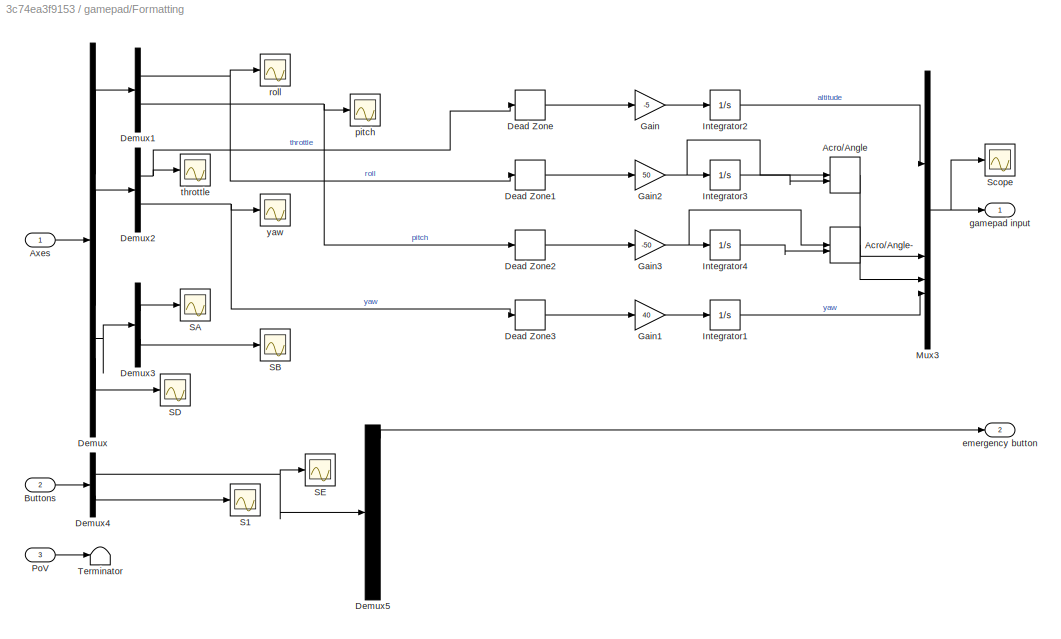
BLOCK [SubSystem] gamepad/Formatting
BLOCK [ManualSwitch] gamepad/Formatting/Acro//Angle
BLOCK [ManualSwitch] gamepad/Formatting/Acro//Angle-
BLOCK [Inport] gamepad/Formatting/Axes
BLOCK [Inport] gamepad/Formatting/Buttons
  Port = 2
BLOCK [DeadZone] gamepad/Formatting/Dead Zone
  LowerValue = -0.2
  UpperValue = 0.2
BLOCK [DeadZone] gamepad/Formatting/Dead Zone1
  LowerValue = -0.2
  UpperValue = 0.2
BLOCK [DeadZone] gamepad/Formatting/Dead Zone2
  LowerValue = -0.2
  UpperValue = 0.2
BLOCK [DeadZone] gamepad/Formatting/Dead Zone3
  LowerValue = -0.2
  UpperValue = 0.2
BLOCK [Demux] gamepad/Formatting/Demux
BLOCK [Demux] gamepad/Formatting/Demux1
  Outputs = 2
BLOCK [Demux] gamepad/Formatting/Demux2
  Outputs = 2
BLOCK [Demux] gamepad/Formatting/Demux3
  Outputs = 2
BLOCK [Demux] gamepad/Formatting/Demux4
  Outputs = 2
BLOCK [Demux] gamepad/Formatting/Demux5
  Outputs = 12
BLOCK [Gain] gamepad/Formatting/Gain
  Gain = -5
BLOCK [Gain] gamepad/Formatting/Gain1
  Gain = 40
BLOCK [Gain] gamepad/Formatting/Gain2
  Gain = 50
BLOCK [Gain] gamepad/Formatting/Gain3
  Gain = -50
BLOCK [Integrator] gamepad/Formatting/Integrator1
BLOCK [Integrator] gamepad/Formatting/Integrator2
  InitialCondition = -10
BLOCK [Integrator] gamepad/Formatting/Integrator3
BLOCK [Integrator] gamepad/Formatting/Integrator4
BLOCK [Mux] gamepad/Formatting/Mux3
  DisplayOption = bar
BLOCK [Inport] gamepad/Formatting/PoV
  Port = 3
BLOCK [Scope] gamepad/Formatting/S1
  Floating = off
  NumInputPorts = 1
  ScopeSpecificationString = Simulink.scopes.TimeScopeBlockCfg('CurrentConfiguration', extmgr.ConfigurationSet(extmgr.Configuration('Core','General UI',true),extmgr.Configuration('Core','Source UI',true),extmgr.Configuration('Sources','WiredSimulink',true,'DataLoggingVariableName','ScopeData9'),extmgr.Configuration('Visuals','Time Domain',true,'SerializedDisplays',{struct('MinYLimReal','-1.00000','MaxYLimReal','1.00000','YLab...<+1400ch>
BLOCK [Scope] gamepad/Formatting/SA
  Floating = off
  NumInputPorts = 1
  ScopeSpecificationString = Simulink.scopes.TimeScopeBlockCfg('CurrentConfiguration', extmgr.ConfigurationSet(extmgr.Configuration('Core','General UI',true),extmgr.Configuration('Core','Source UI',true),extmgr.Configuration('Sources','WiredSimulink',true,'DataLoggingVariableName','ScopeData7'),extmgr.Configuration('Visuals','Time Domain',true,'SerializedDisplays',{struct('MinYLimReal','-1.1','MaxYLimReal','1.1','YLabelReal',...<+1477ch>
BLOCK [Scope] gamepad/Formatting/SB
  Floating = off
  NumInputPorts = 1
  ScopeSpecificationString = Simulink.scopes.TimeScopeBlockCfg('CurrentConfiguration', extmgr.ConfigurationSet(extmgr.Configuration('Core','General UI',true),extmgr.Configuration('Core','Source UI',true),extmgr.Configuration('Sources','WiredSimulink',true,'DataLoggingVariableName','ScopeData8'),extmgr.Configuration('Visuals','Time Domain',true,'SerializedDisplays',{struct('MinYLimReal','-1.1','MaxYLimReal','1.1','YLabelReal',...<+1477ch>
BLOCK [Scope] gamepad/Formatting/SD
  Floating = off
  NumInputPorts = 1
  ScopeSpecificationString = Simulink.scopes.TimeScopeBlockCfg('CurrentConfiguration', extmgr.ConfigurationSet(extmgr.Configuration('Core','General UI',true),extmgr.Configuration('Core','Source UI',true),extmgr.Configuration('Sources','WiredSimulink',true,'DataLoggingVariableName','ScopeData10'),extmgr.Configuration('Visuals','Time Domain',true,'SerializedDisplays',{struct('MinYLimReal','-1.00000','MaxYLimReal','1.00000','YLa...<+1501ch>
BLOCK [Scope] gamepad/Formatting/SE
  Floating = off
  NumInputPorts = 1
  ScopeSpecificationString = Simulink.scopes.TimeScopeBlockCfg('CurrentConfiguration', extmgr.ConfigurationSet(extmgr.Configuration('Core','General UI',true),extmgr.Configuration('Core','Source UI',true),extmgr.Configuration('Sources','WiredSimulink',true,'DataLoggingVariableName','ScopeData6'),extmgr.Configuration('Visuals','Time Domain',true,'SerializedDisplays',{struct('MinYLimReal','-1.1','MaxYLimReal','-0.9','YLabelReal'...<+1378ch>
BLOCK [Scope] gamepad/Formatting/Scope
  Floating = off
  NumInputPorts = 1
  ScopeSpecificationString = Simulink.scopes.TimeScopeBlockCfg('CurrentConfiguration', extmgr.ConfigurationSet(extmgr.Configuration('Core','General UI',true),extmgr.Configuration('Core','Source UI',true),extmgr.Configuration('Sources','WiredSimulink',true,'DataLoggingVariableName','ScopeData12'),extmgr.Configuration('Visuals','Time Domain',true,'SerializedDisplays',{struct('MinYLimReal','-0.97447','MaxYLimReal','0.10827','YLa...<+1389ch>
BLOCK [Terminator] gamepad/Formatting/Terminator
BLOCK [Outport] gamepad/Formatting/emergency button
  Port = 2
BLOCK [Outport] gamepad/Formatting/gamepad input
BLOCK [Scope] gamepad/Formatting/pitch
  Floating = off
  NumInputPorts = 1
  ScopeSpecificationString = Simulink.scopes.TimeScopeBlockCfg('CurrentConfiguration', extmgr.ConfigurationSet(extmgr.Configuration('Core','General UI',true),extmgr.Configuration('Core','Source UI',true),extmgr.Configuration('Sources','WiredSimulink',true,'DataLoggingVariableName','ScopeData3'),extmgr.Configuration('Visuals','Time Domain',true,'SerializedDisplays',{struct('MinYLimReal','-1.1','MaxYLimReal','1.00000','YLabelRe...<+1408ch>
BLOCK [Scope] gamepad/Formatting/roll
  Floating = off
  NumInputPorts = 1
  ScopeSpecificationString = Simulink.scopes.TimeScopeBlockCfg('CurrentConfiguration', extmgr.ConfigurationSet(extmgr.Configuration('Core','General UI',true),extmgr.Configuration('Core','Source UI',true),extmgr.Configuration('Sources','WiredSimulink',true,'DataLoggingVariableName','ScopeData2'),extmgr.Configuration('Visuals','Time Domain',true,'SerializedDisplays',{struct('MinYLimReal','-1.1','MaxYLimReal','1.1','YLabelReal',...<+1399ch>
BLOCK [Scope] gamepad/Formatting/throttle
  Floating = off
  NumInputPorts = 1
  ScopeSpecificationString = Simulink.scopes.TimeScopeBlockCfg('CurrentConfiguration', extmgr.ConfigurationSet(extmgr.Configuration('Core','General UI',true),extmgr.Configuration('Core','Source UI',true),extmgr.Configuration('Sources','WiredSimulink',true,'DataLoggingVariableName','ScopeData4'),extmgr.Configuration('Visuals','Time Domain',true,'SerializedDisplays',{struct('MinYLimReal','-1.1','MaxYLimReal','1.1','YLabelReal',...<+1395ch>
BLOCK [Scope] gamepad/Formatting/yaw
  Floating = off
  NumInputPorts = 1
  ScopeSpecificationString = Simulink.scopes.TimeScopeBlockCfg('CurrentConfiguration', extmgr.ConfigurationSet(extmgr.Configuration('Core','General UI',true),extmgr.Configuration('Core','Source UI',true),extmgr.Configuration('Sources','WiredSimulink',true,'DataLoggingVariableName','ScopeData5'),extmgr.Configuration('Visuals','Time Domain',true,'SerializedDisplays',{struct('MinYLimReal','-1.1','MaxYLimReal','1.1','YLabelReal',...<+1403ch>
BLOCK [Reference] gamepad/Gamepad  REF=vrlib/Joystick Input
  SourceBlock = vrlib/Joystick Input
  SourceType = Joystick Input
BLOCK [Scope] gamepad/Scope
  Floating = off
  NumInputPorts = 1
  ScopeSpecificationString = Simulink.scopes.TimeScopeBlockCfg('CurrentConfiguration', extmgr.ConfigurationSet(extmgr.Configuration('Core','General UI',true),extmgr.Configuration('Core','Source UI',true),extmgr.Configuration('Sources','WiredSimulink',true,'DataLoggingVariableName','ScopeData1'),extmgr.Configuration('Visuals','Time Domain',true,'SerializedDisplays',{struct('MinYLimReal','-1.25','MaxYLimReal','1.25','YLabelReal...<+1464ch>
BLOCK [Outport] gamepad/emergency button
BLOCK [Outport] gamepad/gamepad input
  Port = 2
ANNOTATION (root): Avoidance System
ANNOTATION (root): Environment / Sim
ANNOTATION (root): Guidance System
ANNOTATION (root): This block will upon contact switch off the random movement in favor of flying out of its current location.
ANNOTATION Psudo-Random-Movement: Intensity Parameter
ANNOTATION Psudo-Random-Movement: Keep value for smaller duration
ANNOTATION Psudo-Random-Movement: Modify the single with random movements
ANNOTATION Psudo-Random-Movement: Non-Random Sine motion
ANNOTATION Psudo-Random-Movement: Random Value Generator
ANNOTATION Quadcopter model/Drone: $\nu$
ANNOTATION Quadcopter model/Drone: $\eta$
ANNOTATION Quadcopter model/Omega2tau: $\Omega$
ANNOTATION Quadcopter model/Omega2tau: This saturations makes the drone fly more realistic by limiting the power the drone can give in the different controls
NET Button or Predefined:1 -> Heavy Avoidance:1, Switch:2
LINE Constant1:1 -> Trajectory or Coordinate:1
LINE Constant3:1 -> Formatting:2
LINE Controller or Path:1 -> Heavy Avoidance:2
LINE Demux1:1 -> Position:1
LINE Demux1:2 -> Position:2
LINE Demux1:3 -> Gain:1
LINE Demux1:4 -> Radians to Degrees:1
LINE Demux1:5 -> Radians to Degrees1:1
LINE Demux1:6 -> Radians to Degrees2:1
NET Desired trajectory/Constant1:1 -> Desired trajectory/pd(sigma):3, Desired trajectory/sigma_dot:3
NET Desired trajectory/Constant3:1 -> Desired trajectory/pd(sigma):1, Desired trajectory/sigma_dot:1
NET Desired trajectory/Constant4:1 -> Desired trajectory/pd(sigma):2, Desired trajectory/sigma_dot:2
NET Desired trajectory/Integrator:1 -> Desired trajectory/pd(sigma):4, Desired trajectory/sigma_dot:5
LINE Desired trajectory/pd(sigma):1 -> Desired trajectory/pd:1
LINE Desired trajectory/rhod:1 -> Desired trajectory/sigma_dot:4
LINE Desired trajectory/sigma_dot:1 -> Desired trajectory/Integrator:1
LINE Desired trajectory:1 -> Mux:1
LINE Drone-Speed:1 -> Desired trajectory:1
LINE Formatting/Axes to VR Axes Camera Chase/Demux:1 -> Formatting/Axes to VR Axes Camera Chase/Mux:1
LINE Formatting/Axes to VR Axes Camera Chase/Demux:2 -> Formatting/Axes to VR Axes Camera Chase/Mux:3
LINE Formatting/Axes to VR Axes Camera Chase/Demux:3 -> Formatting/Axes to VR Axes Camera Chase/rad-->deg1:1
LINE Formatting/Axes to VR Axes Camera Chase/Mux:1 -> Formatting/Axes to VR Axes Camera Chase/Xe VR:1
LINE Formatting/Axes to VR Axes Camera Chase/Xe:1 -> Formatting/Axes to VR Axes Camera Chase/Demux:1
LINE Formatting/Axes to VR Axes Camera Chase/rad-->deg1:1 -> Formatting/Axes to VR Axes Camera Chase/Mux:2
LINE Formatting/Axes to VR Axes Camera Chase:1 -> Formatting/Rate Transition3:1
LINE Formatting/Axes to VR Axes Camera Iso/Demux:1 -> Formatting/Axes to VR Axes Camera Iso/Mux:1
LINE Formatting/Axes to VR Axes Camera Iso/Demux:2 -> Formatting/Axes to VR Axes Camera Iso/Mux:3
LINE Formatting/Axes to VR Axes Camera Iso/Demux:3 -> Formatting/Axes to VR Axes Camera Iso/rad-->deg1:1
LINE Formatting/Axes to VR Axes Camera Iso/Mux:1 -> Formatting/Axes to VR Axes Camera Iso/Xe VR:1
LINE Formatting/Axes to VR Axes Camera Iso/Xe:1 -> Formatting/Axes to VR Axes Camera Iso/Demux:1
LINE Formatting/Axes to VR Axes Camera Iso/rad-->deg1:1 -> Formatting/Axes to VR Axes Camera Iso/Mux:2
LINE Formatting/Axes to VR Axes Camera Iso:1 -> Formatting/Rate Transition2:1
LINE Formatting/Axes to VR Axes/Demux:1 -> Formatting/Axes to VR Axes/Mux:1
LINE Formatting/Axes to VR Axes/Demux:2 -> Formatting/Axes to VR Axes/Mux:3
LINE Formatting/Axes to VR Axes/Demux:3 -> Formatting/Axes to VR Axes/rad-->deg1:1
LINE Formatting/Axes to VR Axes/Mux:1 -> Formatting/Axes to VR Axes/Xe VR:1
LINE Formatting/Axes to VR Axes/Xe:1 -> Formatting/Axes to VR Axes/Demux:1
LINE Formatting/Axes to VR Axes/rad-->deg1:1 -> Formatting/Axes to VR Axes/Mux:2
LINE Formatting/Axes to VR Axes:1 -> Formatting/Rate Transition1:1
LINE Formatting/Camera bias Chase:1 -> Formatting/Axes to VR Axes Camera Chase:1
LINE Formatting/Camera bias Iso:1 -> Formatting/Axes to VR Axes Camera Iso:1
LINE Formatting/Demux:1 -> Formatting/Mux1:1
LINE Formatting/Demux:2 -> Formatting/Mux1:2
LINE Formatting/Demux:3 -> Formatting/Mux1:3
LINE Formatting/Demux:4 -> Formatting/Mux3:1
LINE Formatting/Demux:5 -> Formatting/Mux3:2
LINE Formatting/Demux:6 -> Formatting/Mux3:3
LINE Formatting/Eta:1 -> Formatting/Demux:1
LINE Formatting/Euler to VR/Axis Angle Vector/2:1 -> Formatting/Euler to VR/Axis Angle Vector/Mux:2
LINE Formatting/Euler to VR/Axis Angle Vector/Constant:1 -> Formatting/Euler to VR/Axis Angle Vector/Switch:3
LINE Formatting/Euler to VR/Axis Angle Vector/Demux:1 -> Formatting/Euler to VR/Axis Angle Vector/Trigonometric Function2:1
LINE Formatting/Euler to VR/Axis Angle Vector/Demux:2 -> Formatting/Euler to VR/Axis Angle Vector/Product:1
LINE Formatting/Euler to VR/Axis Angle Vector/Mux:1 -> Formatting/Euler to VR/Axis Angle Vector/e0_norm:1
LINE Formatting/Euler to VR/Axis Angle Vector/Product:1 -> Formatting/Euler to VR/Axis Angle Vector/Mux:1
LINE Formatting/Euler to VR/Axis Angle Vector/Switch:1 -> Formatting/Euler to VR/Axis Angle Vector/Product:2
NET Formatting/Euler to VR/Axis Angle Vector/Trigonometric Function2:1 -> Formatting/Euler to VR/Axis Angle Vector/2:1, Formatting/Euler to VR/Axis Angle Vector/Trigonometric Function:1
NET Formatting/Euler to VR/Axis Angle Vector/Trigonometric Function:1 -> Formatting/Euler to VR/Axis Angle Vector/Switch:1, Formatting/Euler to VR/Axis Angle Vector/Switch:2
LINE Formatting/Euler to VR/Axis Angle Vector/e0:1 -> Formatting/Euler to VR/Axis Angle Vector/Demux:1
LINE Formatting/Euler to VR/Axis Angle Vector:1 -> Formatting/Euler to VR/Axis Angle:1
NET Formatting/Euler to VR/Euler Angles:1 -> Formatting/Euler to VR/Selector1:1, Formatting/Euler to VR/Selector2:1, Formatting/Euler to VR/Selector:1
LINE Formatting/Euler to VR/Mux1:1 -> Formatting/Euler to VR/Quaternion Normalization1:1
LINE Formatting/Euler to VR/Mux2:1 -> Formatting/Euler to VR/Quaternion Normalization2:1
LINE Formatting/Euler to VR/Mux:1 -> Formatting/Euler to VR/Quaternion Normalization:1
LINE Formatting/Euler to VR/Quaternion Multiplication (Pitch & Yaw):1 -> Formatting/Euler to VR/Quaternion Multiplication (Roll):1
LINE Formatting/Euler to VR/Quaternion Multiplication (Roll):1 -> Formatting/Euler to VR/Axis Angle Vector:1
NET Formatting/Euler to VR/Quaternion Normalization/1//2:1 -> Formatting/Euler to VR/Quaternion Normalization/Trigonometric Function1:1, Formatting/Euler to VR/Quaternion Normalization/Trigonometric Function:1
LINE Formatting/Euler to VR/Quaternion Normalization/Demux:1 -> Formatting/Euler to VR/Quaternion Normalization/1//2:1
LINE Formatting/Euler to VR/Quaternion Normalization/Demux:2 -> Formatting/Euler to VR/Quaternion Normalization/Product:2
LINE Formatting/Euler to VR/Quaternion Normalization/Mux:1 -> Formatting/Euler to VR/Quaternion Normalization/e0_norm:1
LINE Formatting/Euler to VR/Quaternion Normalization/Product:1 -> Formatting/Euler to VR/Quaternion Normalization/Mux:2
LINE Formatting/Euler to VR/Quaternion Normalization/Trigonometric Function1:1 -> Formatting/Euler to VR/Quaternion Normalization/Mux:1
LINE Formatting/Euler to VR/Quaternion Normalization/Trigonometric Function:1 -> Formatting/Euler to VR/Quaternion Normalization/Product:1
LINE Formatting/Euler to VR/Quaternion Normalization/e0:1 -> Formatting/Euler to VR/Quaternion Normalization/Demux:1
NET Formatting/Euler to VR/Quaternion Normalization1/1//2:1 -> Formatting/Euler to VR/Quaternion Normalization1/Trigonometric Function1:1, Formatting/Euler to VR/Quaternion Normalization1/Trigonometric Function:1
LINE Formatting/Euler to VR/Quaternion Normalization1/Demux:1 -> Formatting/Euler to VR/Quaternion Normalization1/1//2:1
LINE Formatting/Euler to VR/Quaternion Normalization1/Demux:2 -> Formatting/Euler to VR/Quaternion Normalization1/Product:2
LINE Formatting/Euler to VR/Quaternion Normalization1/Mux:1 -> Formatting/Euler to VR/Quaternion Normalization1/e0_norm:1
LINE Formatting/Euler to VR/Quaternion Normalization1/Product:1 -> Formatting/Euler to VR/Quaternion Normalization1/Mux:2
LINE Formatting/Euler to VR/Quaternion Normalization1/Trigonometric Function1:1 -> Formatting/Euler to VR/Quaternion Normalization1/Mux:1
LINE Formatting/Euler to VR/Quaternion Normalization1/Trigonometric Function:1 -> Formatting/Euler to VR/Quaternion Normalization1/Product:1
LINE Formatting/Euler to VR/Quaternion Normalization1/e0:1 -> Formatting/Euler to VR/Quaternion Normalization1/Demux:1
LINE Formatting/Euler to VR/Quaternion Normalization1:1 -> Formatting/Euler to VR/Quaternion Multiplication (Pitch & Yaw):2
NET Formatting/Euler to VR/Quaternion Normalization2/1//2:1 -> Formatting/Euler to VR/Quaternion Normalization2/Trigonometric Function1:1, Formatting/Euler to VR/Quaternion Normalization2/Trigonometric Function:1
LINE Formatting/Euler to VR/Quaternion Normalization2/Demux:1 -> Formatting/Euler to VR/Quaternion Normalization2/1//2:1
LINE Formatting/Euler to VR/Quaternion Normalization2/Demux:2 -> Formatting/Euler to VR/Quaternion Normalization2/Product:2
LINE Formatting/Euler to VR/Quaternion Normalization2/Mux:1 -> Formatting/Euler to VR/Quaternion Normalization2/e0_norm:1
LINE Formatting/Euler to VR/Quaternion Normalization2/Product:1 -> Formatting/Euler to VR/Quaternion Normalization2/Mux:2
LINE Formatting/Euler to VR/Quaternion Normalization2/Trigonometric Function1:1 -> Formatting/Euler to VR/Quaternion Normalization2/Mux:1
LINE Formatting/Euler to VR/Quaternion Normalization2/Trigonometric Function:1 -> Formatting/Euler to VR/Quaternion Normalization2/Product:1
LINE Formatting/Euler to VR/Quaternion Normalization2/e0:1 -> Formatting/Euler to VR/Quaternion Normalization2/Demux:1
LINE Formatting/Euler to VR/Quaternion Normalization2:1 -> Formatting/Euler to VR/Quaternion Multiplication (Pitch & Yaw):1
LINE Formatting/Euler to VR/Quaternion Normalization:1 -> Formatting/Euler to VR/Quaternion Multiplication (Roll):2
LINE Formatting/Euler to VR/Selector1:1 -> Formatting/Euler to VR/Mux1:1
LINE Formatting/Euler to VR/Selector2:1 -> Formatting/Euler to VR/Mux:1
LINE Formatting/Euler to VR/Selector:1 -> Formatting/Euler to VR/Mux2:1
LINE Formatting/Euler to VR/Vr Pitch Axes:1 -> Formatting/Euler to VR/Mux1:2
LINE Formatting/Euler to VR/Vr Roll Axes:1 -> Formatting/Euler to VR/Mux:2
LINE Formatting/Euler to VR/Vr Yaw Axes:1 -> Formatting/Euler to VR/Mux2:2
LINE Formatting/Euler to VR:1 -> Formatting/Rate Transition:1
NET Formatting/Mux1:1 -> Formatting/Axes to VR Axes:1, Formatting/Camera bias Chase:1, Formatting/Camera bias Iso:1
LINE Formatting/Mux3:1 -> Formatting/Euler to VR:1
LINE Formatting/Propeller velocities:1 -> Formatting/Subsystem:1
LINE Formatting/Rate Transition1:1 -> Formatting/Out2:1
LINE Formatting/Rate Transition2:1 -> Formatting/Out7:1
LINE Formatting/Rate Transition3:1 -> Formatting/Out8:1
LINE Formatting/Rate Transition:1 -> Formatting/Out1:1
LINE Formatting/Subsystem/Bias1:1 -> Formatting/Subsystem/Mux1:2
LINE Formatting/Subsystem/Bias2:1 -> Formatting/Subsystem/Mux2:2
LINE Formatting/Subsystem/Bias3:1 -> Formatting/Subsystem/Mux3:2
LINE Formatting/Subsystem/Bias:1 -> Formatting/Subsystem/Mux:2
NET Formatting/Subsystem/Constant:1 -> Formatting/Subsystem/Mux1:1, Formatting/Subsystem/Mux2:1, Formatting/Subsystem/Mux3:1, Formatting/Subsystem/Mux:1
LINE Formatting/Subsystem/Data Type Conversion:1 -> Formatting/Subsystem/Gain:1
LINE Formatting/Subsystem/Demux:1 -> Formatting/Subsystem/Bias:1
LINE Formatting/Subsystem/Demux:2 -> Formatting/Subsystem/Bias1:1
LINE Formatting/Subsystem/Demux:3 -> Formatting/Subsystem/Bias2:1
LINE Formatting/Subsystem/Demux:4 -> Formatting/Subsystem/Bias3:1
LINE Formatting/Subsystem/Gain:1 -> Formatting/Subsystem/Integrator:1
LINE Formatting/Subsystem/Integrator:1 -> Formatting/Subsystem/Rate Transition2:1
LINE Formatting/Subsystem/Mux1:1 -> Formatting/Subsystem/Position Blade 2:1
LINE Formatting/Subsystem/Mux2:1 -> Formatting/Subsystem/Position Blade 3:1
LINE Formatting/Subsystem/Mux3:1 -> Formatting/Subsystem/Position Blade 4:1
LINE Formatting/Subsystem/Mux:1 -> Formatting/Subsystem/Position Blade1:1
LINE Formatting/Subsystem/Propeller velocities:1 -> Formatting/Subsystem/Data Type Conversion:1
LINE Formatting/Subsystem/Rate Transition2:1 -> Formatting/Subsystem/Demux:1
LINE Formatting/Subsystem:1 -> Formatting/Position Blade1:1
LINE Formatting/Subsystem:2 -> Formatting/Position Blade 2:1
LINE Formatting/Subsystem:3 -> Formatting/Position Blade 3:1
LINE Formatting/Subsystem:4 -> Formatting/Position Blade 4:1
LINE Formatting:1 -> VR Sink:1
LINE Formatting:2 -> VR Sink:2
LINE Formatting:3 -> VR Sink:3
LINE Formatting:4 -> VR Sink:4
LINE Formatting:5 -> VR Sink:5
LINE Formatting:6 -> VR Sink:6
LINE Formatting:7 -> VR Sink:7
LINE Formatting:8 -> VR Sink:8
LINE Gain:1 -> Position:3
LINE Heading:1 -> Mux:2
NET Heavy Avoidance:1 -> Psudo-Random-Movement:1, Random Movement on//off:1, Switch:1
LINE Heavy Avoidance:2 -> Memory Keep:1
LINE Memory Keep:1 -> Heavy Avoidance:4
LINE Mux:1 -> Trajectory or Coordinate:2
NET Outer loop position control/Demux1:1 -> Outer loop position control/Sum:2, Outer loop position control/x//y(t):1
LINE Outer loop position control/Demux1:2 -> Outer loop position control/Sum1:2
LINE Outer loop position control/Demux1:3 -> Outer loop position control/Terminator:1
LINE Outer loop position control/Demux1:4 -> Outer loop position control/Terminator1:1
LINE Outer loop position control/Demux1:5 -> Outer loop position control/Terminator2:1
LINE Outer loop position control/Demux1:6 -> Outer loop position control/MATLAB Function:2
NET Outer loop position control/Demux2:1 -> Outer loop position control/PID Controller2:1, Outer loop position control/Pid Effect:1
LINE Outer loop position control/Demux2:2 -> Outer loop position control/PID Controller1:1
LINE Outer loop position control/Demux:1 -> Outer loop position control/Sum:1
LINE Outer loop position control/Demux:2 -> Outer loop position control/Sum1:1
LINE Outer loop position control/Demux:3 -> Outer loop position control/Mux:1
LINE Outer loop position control/Demux:4 -> Outer loop position control/Mux:4
LINE Outer loop position control/Gain:1 -> Outer loop position control/Mux:3
LINE Outer loop position control/MATLAB Function:1 -> Outer loop position control/Demux2:1
LINE Outer loop position control/Mux1:1 -> Outer loop position control/MATLAB Function:1
LINE Outer loop position control/Mux:1 -> Outer loop position control/desired z,phi,theta,psi:1
LINE Outer loop position control/PID Controller1:1 -> Outer loop position control/Saturation1:1
NET Outer loop position control/PID Controller2:1 -> Outer loop position control/Pid Effect:2, Outer loop position control/Saturation:1
LINE Outer loop position control/Pos. refs:1 -> Outer loop position control/Demux:1
LINE Outer loop position control/Saturation1:1 -> Outer loop position control/Mux:2
NET Outer loop position control/Saturation:1 -> Outer loop position control/Gain:1, Outer loop position control/x//y(t):2
LINE Outer loop position control/Sum1:1 -> Outer loop position control/Mux1:2
LINE Outer loop position control/Sum:1 -> Outer loop position control/Mux1:1
LINE Outer loop position control/eta:1 -> Outer loop position control/Demux1:1
LINE Outer loop position control:1 -> Controller or Path:2
LINE PID controllers/Degrees to Radians1:1 -> PID controllers/Sum2:1
LINE PID controllers/Degrees to Radians2:1 -> PID controllers/Sum3:1
LINE PID controllers/Degrees to Radians:1 -> PID controllers/Sum1:1
LINE PID controllers/Demux1:3 -> PID controllers/Sum:2
LINE PID controllers/Demux1:4 -> PID controllers/Sum1:2
LINE PID controllers/Demux1:5 -> PID controllers/Sum2:2
LINE PID controllers/Demux1:6 -> PID controllers/Sum3:2
LINE PID controllers/Demux:1 -> PID controllers/Sum:1
LINE PID controllers/Demux:2 -> PID controllers/Degrees to Radians:1
LINE PID controllers/Demux:3 -> PID controllers/Degrees to Radians1:1
LINE PID controllers/Demux:4 -> PID controllers/Degrees to Radians2:1
LINE PID controllers/Mux:1 -> PID controllers/Fz,mx,my,mz:1
NET PID controllers/PID Controller1:1 -> PID controllers/Mux:2, PID controllers/Scope:2
NET PID controllers/PID Controller2:1 -> PID controllers/Mux:3, PID controllers/Scope:3
NET PID controllers/PID Controller3:1 -> PID controllers/Mux:4, PID controllers/Scope:4
NET PID controllers/PID Controller:1 -> PID controllers/Mux:1, PID controllers/Scope:1
LINE PID controllers/Saturation1:1 -> PID controllers/PID Controller1:1
LINE PID controllers/Saturation2:1 -> PID controllers/PID Controller2:1
LINE PID controllers/Saturation3:1 -> PID controllers/PID Controller3:1
NET PID controllers/Sum1:1 -> PID controllers/Saturation1:1, PID controllers/Scope1:2
NET PID controllers/Sum2:1 -> PID controllers/Saturation2:1, PID controllers/Scope1:3
NET PID controllers/Sum3:1 -> PID controllers/Saturation3:1, PID controllers/Scope1:4
NET PID controllers/Sum:1 -> PID controllers/PID Controller:1, PID controllers/Scope1:1
LINE PID controllers/eta:1 -> PID controllers/Demux1:1
LINE PID controllers/refs:1 -> PID controllers/Demux:1
LINE PID controllers:1 -> Quadcopter model:1
LINE Psudo-Random-Movement/Demux1:1 -> Psudo-Random-Movement/Sum:2
LINE Psudo-Random-Movement/Demux1:2 -> Psudo-Random-Movement/Sum1:2
LINE Psudo-Random-Movement/Demux1:3 -> Psudo-Random-Movement/Sum2:2
LINE Psudo-Random-Movement/Demux:1 -> Psudo-Random-Movement/Mux:1
LINE Psudo-Random-Movement/Demux:2 -> Psudo-Random-Movement/Sum2:1
LINE Psudo-Random-Movement/Demux:3 -> Psudo-Random-Movement/Sum1:1
LINE Psudo-Random-Movement/Demux:4 -> Psudo-Random-Movement/Sum:1
LINE Psudo-Random-Movement/Fz,mx,my,mz:1 -> Psudo-Random-Movement/Demux:1
LINE Psudo-Random-Movement/Gain1:1 -> Psudo-Random-Movement/Sample and Hold1:1
LINE Psudo-Random-Movement/Gain2:1 -> Psudo-Random-Movement/Sample and Hold2:1
LINE Psudo-Random-Movement/Gain:1 -> Psudo-Random-Movement/Sample and Hold:1
NET Psudo-Random-Movement/Manual Switch:1 -> Psudo-Random-Movement/Demux1:1, Psudo-Random-Movement/Visualization Random Input:1
LINE Psudo-Random-Movement/Mux1:1 -> Psudo-Random-Movement/Manual Switch:2
LINE Psudo-Random-Movement/Mux2:1 -> Psudo-Random-Movement/Manual Switch:1
LINE Psudo-Random-Movement/Mux:1 -> Psudo-Random-Movement/Out:1
NET Psudo-Random-Movement/Pulse Generator:1 -> Psudo-Random-Movement/Sample and Hold1:trigger, Psudo-Random-Movement/Sample and Hold2:trigger, Psudo-Random-Movement/Sample and Hold:trigger
LINE Psudo-Random-Movement/Random Number1:1 -> Psudo-Random-Movement/Round1:1
LINE Psudo-Random-Movement/Random Number2:1 -> Psudo-Random-Movement/Round2:1
LINE Psudo-Random-Movement/Random Number:1 -> Psudo-Random-Movement/Round:1
LINE Psudo-Random-Movement/Round1:1 -> Psudo-Random-Movement/Gain1:1
LINE Psudo-Random-Movement/Round2:1 -> Psudo-Random-Movement/Gain2:1
LINE Psudo-Random-Movement/Round:1 -> Psudo-Random-Movement/Gain:1
LINE Psudo-Random-Movement/Sample and Hold1:1 -> Psudo-Random-Movement/Mux2:2
LINE Psudo-Random-Movement/Sample and Hold2:1 -> Psudo-Random-Movement/Mux2:3
LINE Psudo-Random-Movement/Sample and Hold:1 -> Psudo-Random-Movement/Mux2:1
LINE Psudo-Random-Movement/Saturation1:1 -> Psudo-Random-Movement/Mux:3
LINE Psudo-Random-Movement/Saturation:1 -> Psudo-Random-Movement/Mux:2
LINE Psudo-Random-Movement/Sine Wave1:1 -> Psudo-Random-Movement/Mux1:2
LINE Psudo-Random-Movement/Sine Wave2:1 -> Psudo-Random-Movement/Mux1:3
LINE Psudo-Random-Movement/Sine Wave:1 -> Psudo-Random-Movement/Mux1:1
LINE Psudo-Random-Movement/Sum1:1 -> Psudo-Random-Movement/Saturation1:1
LINE Psudo-Random-Movement/Sum2:1 -> Psudo-Random-Movement/Saturation:1
LINE Psudo-Random-Movement/Sum:1 -> Psudo-Random-Movement/Mux:4
LINE Psudo-Random-Movement:1 -> Random Movement on//off:2
LINE Quadcopter model/Drone/Constant1:1 -> Quadcopter model/Drone/MATLAB Function:3
LINE Quadcopter model/Drone/Constant2:1 -> Quadcopter model/Drone/Manual Switch:2
LINE Quadcopter model/Drone/Constant3:1 -> Quadcopter model/Drone/Manual Switch:1
LINE Quadcopter model/Drone/Constant:1 -> Quadcopter model/Drone/MATLAB Function:2
LINE Quadcopter model/Drone/Degrees to Radians:1 -> Quadcopter model/Drone/Mux:2
LINE Quadcopter model/Drone/Gain:1 -> Quadcopter model/Drone/Integrator1:1
LINE Quadcopter model/Drone/Gravity/Constant4:1 -> Quadcopter model/Drone/Gravity/Matrix Multiply:2
LINE Quadcopter model/Drone/Gravity/Constant5:1 -> Quadcopter model/Drone/Gravity/Mux1:2
LINE Quadcopter model/Drone/Gravity/Matrix Multiply:1 -> Quadcopter model/Drone/Gravity/Mux1:1
LINE Quadcopter model/Drone/Gravity/Mux1:1 -> Quadcopter model/Drone/Gravity/tau_gravity:1
LINE Quadcopter model/Drone/Gravity/Rotation:1 -> Quadcopter model/Drone/Gravity/Transpose:1
LINE Quadcopter model/Drone/Gravity/Transpose:1 -> Quadcopter model/Drone/Gravity/Matrix Multiply:1
LINE Quadcopter model/Drone/Gravity:1 -> Quadcopter model/Drone/Sum:1
LINE Quadcopter model/Drone/In1:1 -> Quadcopter model/Drone/Sum:2
NET Quadcopter model/Drone/Integrator1:1 -> Quadcopter model/Drone/MATLAB Function1:1, Quadcopter model/Drone/MATLAB Function:1
NET Quadcopter model/Drone/Integrator:1 -> Quadcopter model/Drone/MATLAB Function1:2, Quadcopter model/Drone/Out1:1
LINE Quadcopter model/Drone/MATLAB Function1:1 -> Quadcopter model/Drone/Gravity:1
LINE Quadcopter model/Drone/MATLAB Function1:2 -> Quadcopter model/Drone/Integrator:1
LINE Quadcopter model/Drone/MATLAB Function:1 -> Quadcopter model/Drone/Sum:3
LINE Quadcopter model/Drone/Manual Switch:1 -> Quadcopter model/Drone/Degrees to Radians:1
LINE Quadcopter model/Drone/Mux:1 -> Quadcopter model/Drone/Integrator:2
LINE Quadcopter model/Drone/Sum:1 -> Quadcopter model/Drone/Gain:1
LINE Quadcopter model/Drone/p(0):1 -> Quadcopter model/Drone/Mux:1
LINE Quadcopter model/Drone:1 -> Quadcopter model/eta:1
LINE Quadcopter model/Fz,mx,my,mz:1 -> Quadcopter model/Omega2tau:1
NET Quadcopter model/Omega2tau/Constant:1 -> Quadcopter model/Omega2tau/Mux:1, Quadcopter model/Omega2tau/Mux:2
LINE Quadcopter model/Omega2tau/Demux:1 -> Quadcopter model/Omega2tau/Saturation:1
LINE Quadcopter model/Omega2tau/Demux:2 -> Quadcopter model/Omega2tau/Saturation1:1
LINE Quadcopter model/Omega2tau/Demux:3 -> Quadcopter model/Omega2tau/Saturation2:1
LINE Quadcopter model/Omega2tau/Demux:4 -> Quadcopter model/Omega2tau/Saturation3:1
LINE Quadcopter model/Omega2tau/Fz,mx,my,mz:1 -> Quadcopter model/Omega2tau/Demux:1
LINE Quadcopter model/Omega2tau/Mux:1 -> Quadcopter model/Omega2tau/Out1:1
LINE Quadcopter model/Omega2tau/Saturation1:1 -> Quadcopter model/Omega2tau/Mux:4
LINE Quadcopter model/Omega2tau/Saturation2:1 -> Quadcopter model/Omega2tau/Mux:5
LINE Quadcopter model/Omega2tau/Saturation3:1 -> Quadcopter model/Omega2tau/Mux:6
LINE Quadcopter model/Omega2tau/Saturation:1 -> Quadcopter model/Omega2tau/Mux:3
LINE Quadcopter model/Omega2tau:1 -> Quadcopter model/Drone:1
NET Quadcopter model:1 -> Demux1:1, Formatting:1, Heavy Avoidance:3, Outer loop position control:2, PID controllers:2
LINE Radians to Degrees1:1 -> Angles:2
LINE Radians to Degrees2:1 -> Angles:3
LINE Radians to Degrees:1 -> Angles:1
LINE Random Movement on//off:1 -> Switch:3
LINE Step1:1 -> Sum:1
LINE Step:1 -> Sum:2
LINE Sum:1 -> Button or Predefined:1
LINE Switch:1 -> PID controllers:1
LINE Trajectory or Coordinate:1 -> Outer loop position control:1
LINE gamepad/Formatting/Acro//Angle-:1 -> gamepad/Formatting/Mux3:3
LINE gamepad/Formatting/Acro//Angle:1 -> gamepad/Formatting/Mux3:2
LINE gamepad/Formatting/Axes:1 -> gamepad/Formatting/Demux:1
LINE gamepad/Formatting/Buttons:1 -> gamepad/Formatting/Demux4:1
LINE gamepad/Formatting/Dead Zone1:1 -> gamepad/Formatting/Gain2:1
LINE gamepad/Formatting/Dead Zone2:1 -> gamepad/Formatting/Gain3:1
LINE gamepad/Formatting/Dead Zone3:1 -> gamepad/Formatting/Gain1:1
LINE gamepad/Formatting/Dead Zone:1 -> gamepad/Formatting/Gain:1
NET gamepad/Formatting/Demux1:1 -> gamepad/Formatting/Dead Zone1:1, gamepad/Formatting/roll:1
NET gamepad/Formatting/Demux1:2 -> gamepad/Formatting/Dead Zone2:1, gamepad/Formatting/pitch:1
NET gamepad/Formatting/Demux2:1 -> gamepad/Formatting/Dead Zone:1, gamepad/Formatting/throttle:1
NET gamepad/Formatting/Demux2:2 -> gamepad/Formatting/Dead Zone3:1, gamepad/Formatting/yaw:1
LINE gamepad/Formatting/Demux3:1 -> gamepad/Formatting/SA:1
LINE gamepad/Formatting/Demux3:2 -> gamepad/Formatting/SB:1
NET gamepad/Formatting/Demux4:1 -> gamepad/Formatting/Demux5:1, gamepad/Formatting/SE:1
LINE gamepad/Formatting/Demux4:2 -> gamepad/Formatting/S1:1
LINE gamepad/Formatting/Demux5:1 -> gamepad/Formatting/emergency button:1
LINE gamepad/Formatting/Demux:1 -> gamepad/Formatting/Demux1:1
LINE gamepad/Formatting/Demux:2 -> gamepad/Formatting/Demux2:1
LINE gamepad/Formatting/Demux:3 -> gamepad/Formatting/Demux3:1
LINE gamepad/Formatting/Demux:4 -> gamepad/Formatting/SD:1
LINE gamepad/Formatting/Gain1:1 -> gamepad/Formatting/Integrator1:1
NET gamepad/Formatting/Gain2:1 -> gamepad/Formatting/Acro//Angle:1, gamepad/Formatting/Integrator3:1
NET gamepad/Formatting/Gain3:1 -> gamepad/Formatting/Acro//Angle-:1, gamepad/Formatting/Integrator4:1
LINE gamepad/Formatting/Gain:1 -> gamepad/Formatting/Integrator2:1
LINE gamepad/Formatting/Integrator1:1 -> gamepad/Formatting/Mux3:4
LINE gamepad/Formatting/Integrator2:1 -> gamepad/Formatting/Mux3:1
LINE gamepad/Formatting/Integrator3:1 -> gamepad/Formatting/Acro//Angle:2
LINE gamepad/Formatting/Integrator4:1 -> gamepad/Formatting/Acro//Angle-:2
NET gamepad/Formatting/Mux3:1 -> gamepad/Formatting/Scope:1, gamepad/Formatting/gamepad input:1
LINE gamepad/Formatting/PoV:1 -> gamepad/Formatting/Terminator:1
LINE gamepad/Formatting:1 -> gamepad/gamepad input:1
LINE gamepad/Formatting:2 -> gamepad/emergency button:1
NET gamepad/Gamepad:1 -> gamepad/Formatting:1, gamepad/Scope:1
LINE gamepad/Gamepad:2 -> gamepad/Formatting:2
LINE gamepad:1 -> Button or Predefined:2
LINE gamepad:2 -> Controller or Path:1
note: NET lines group one-source signal fan-out (src -> all destinations, sorted); 1:1 wires keep LINE
CHART Outer loop position control/MATLAB Function states=1 transitions=1
  STATE_LABEL 'eML_blk_kernel()'
  STATE_LABEL "SCRIPT:\nfunction Deltap_b = fcn(Deltap_e,psi)\n\nR = [ cos(psi) , -sin(psi) ;\n      sin(psi) ,  cos(psi) ];\n\nDeltap_b = R'*Deltap_e;\n"
CHART Quadcopter model/Drone/MATLAB Function states=1 transitions=1
  STATE_LABEL 'eML_blk_kernel()'
  STATE_LABEL 'SCRIPT:\nfunction Cnunu = fcn(nu,m,Ic)\n\nv = nu(1:3);  % linear velocities (expressed in the body frame)\nomega = nu(4:6); % angular velocities (expressed in the body frame)\n\n\nCnunu = [ cross(omega,m*v) ; -cross(Ic*omega,omega) ];\n\n'
CHART Desired trajectory/pd(sigma) states=1 transitions=1
  STATE_LABEL 'eML_blk_kernel()'
  STATE_LABEL 'SCRIPT:\nfunction pd = fcn(alpha_x,alpha_y,alpha_z,sigma)\n\nif sigma<1\n    alphax = alpha_x(1:4);\n    alphay = alpha_y(1:4);\n    alphaz = alpha_z(1:4);\nelseif sigma<2\n    alphax = alpha_x(5:8);\n    alphay = alpha_y(5:8);\n    alphaz = alpha_z(5:8);\nelse\n    alphax = alpha_x(9:12);\n    alphay = alpha_y(9:12);\n    alphaz = alpha_z(9:12);\nend\n\n% Added a negative on the Z to make sure it is not going und...<+314ch>'
CHART Quadcopter model/Drone/MATLAB Function1 states=1 transitions=1
  STATE_LABEL 'eML_blk_kernel()'
  STATE_LABEL 'SCRIPT:\nfunction [R_be,eta_dot]= J_Theta(nu, eta)\n\n% Euler angle extraction\nphi = eta(4);\ntheta = eta(5);\npsi = eta(6);\n\nR_xphi = [ 1 0 0 ; 0 cos(phi) -sin(phi) ; 0 sin(phi) cos(phi) ];\nR_ytheta = [ cos(theta) 0 sin(theta) ; 0 1 0 ; -sin(theta) 0 cos(theta) ];\nR_zpsi = [ cos(psi) -sin(psi) 0 ; sin(psi) cos(psi) 0 ; 0 0 1 ];\n\n% rotation matrix\nR_be = R_zpsi * R_ytheta * R_xphi;\n\n% angular velocity ...<+215ch>'
CHART Desired trajectory/sigma_dot states=1 transitions=1
  STATE_LABEL 'eML_blk_kernel()'
  STATE_LABEL "SCRIPT:\nfunction sigma_dot = fcn(alpha_x,alpha_y,alpha_z,rhod,sigma)\n\n\nif sigma<1\n    alphax = alpha_x(1:4);\n    alphay = alpha_y(1:4);\n    alphaz = alpha_z(1:4);\nelseif sigma<2\n    alphax = alpha_x(5:8);\n    alphay = alpha_y(5:8);\n    alphaz = alpha_z(5:8);\nelse\n    alphax = alpha_x(9:12);\n    alphay = alpha_y(9:12);\n    alphaz = alpha_z(9:12);\nend\n\nxdp = b_prime(sigma)'*alphax;\nydp = b_prime(sig...<+203ch>"
CHART Heavy Avoidance states=1 transitions=1
  STATE_LABEL 'eML_blk_kernel()'
  STATE_LABEL 'SCRIPT:\nfunction [ref_out,mem_out]= fcn(contact,ref_in,eta,mem_in)\n\n\nif contact == 0\n    ref_out = ref_in;\n    mem_out = [-1;eta(3)];\nelse\n    if mem_in(1) == 0\n        ref_out = [mem_in(2)-150;0;0;0]; %Shoot up and away (200m away)!\n        mem_out = [0;mem_in(2)];\n    elseif mem_in(1) == 1\n        ref_out = [mem_in(2);45;45;0];% Stay at the same height but move away\n        if -1*eta(3) < (-1*me...<+501ch>'
CHART  states=0 transitions=0
CHART  states=0 transitions=0
CHART  states=0 transitions=0
CHART  states=0 transitions=0
CHART  states=0 transitions=0
CHART  states=0 transitions=0
